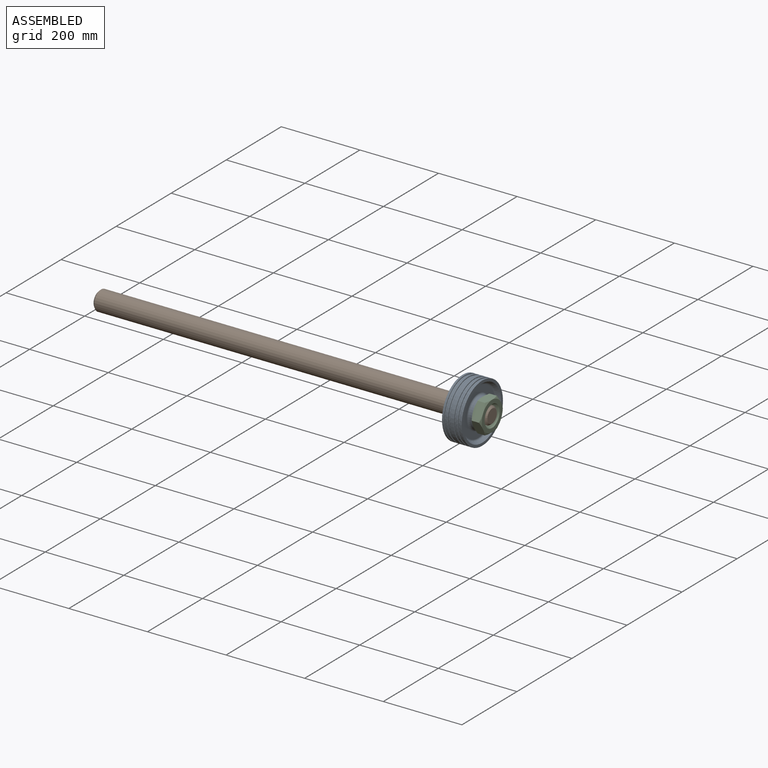
[diagram: assembled view]
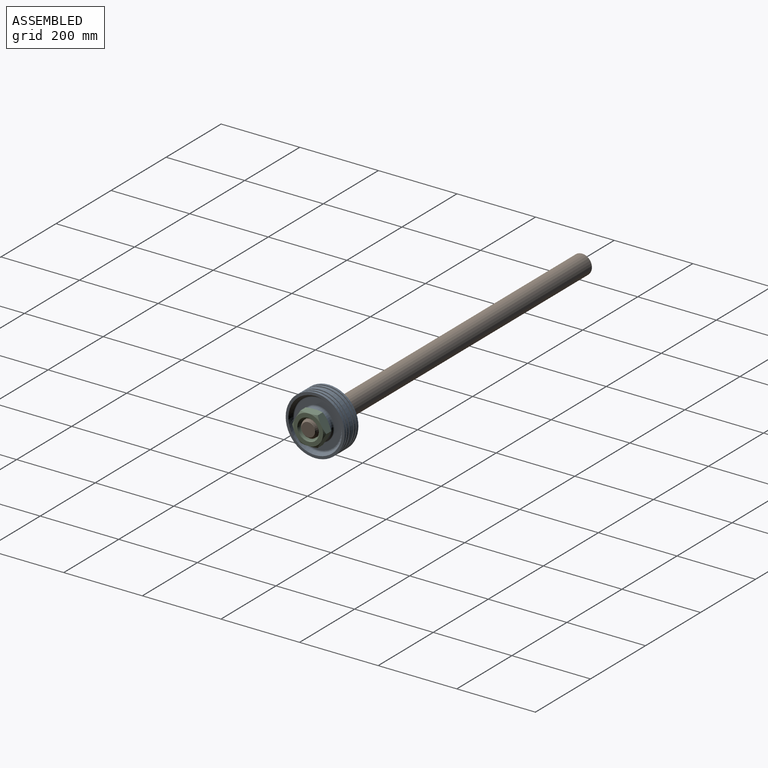
[diagram: assembled view, second angle]
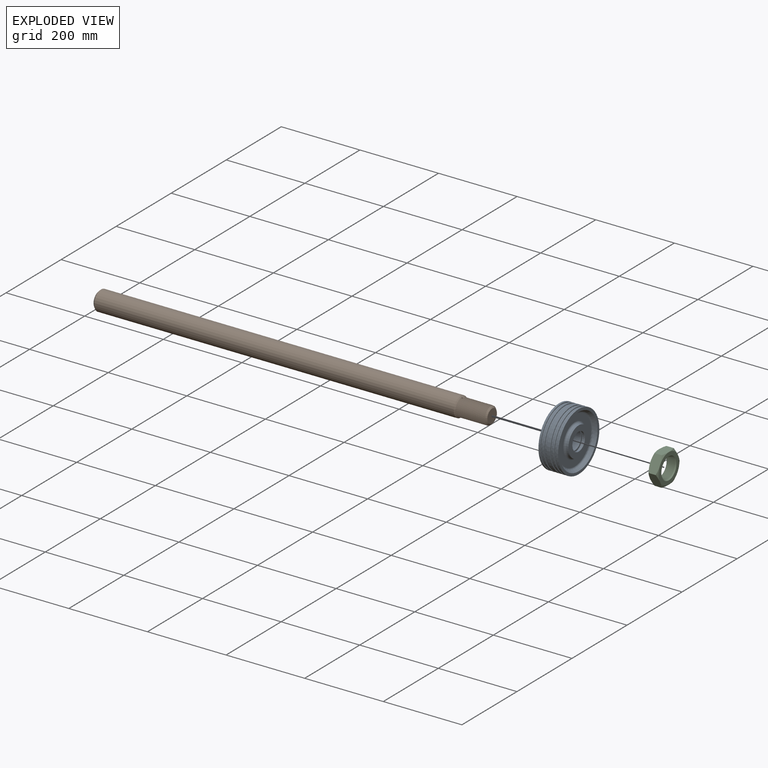
[diagram: exploded view]
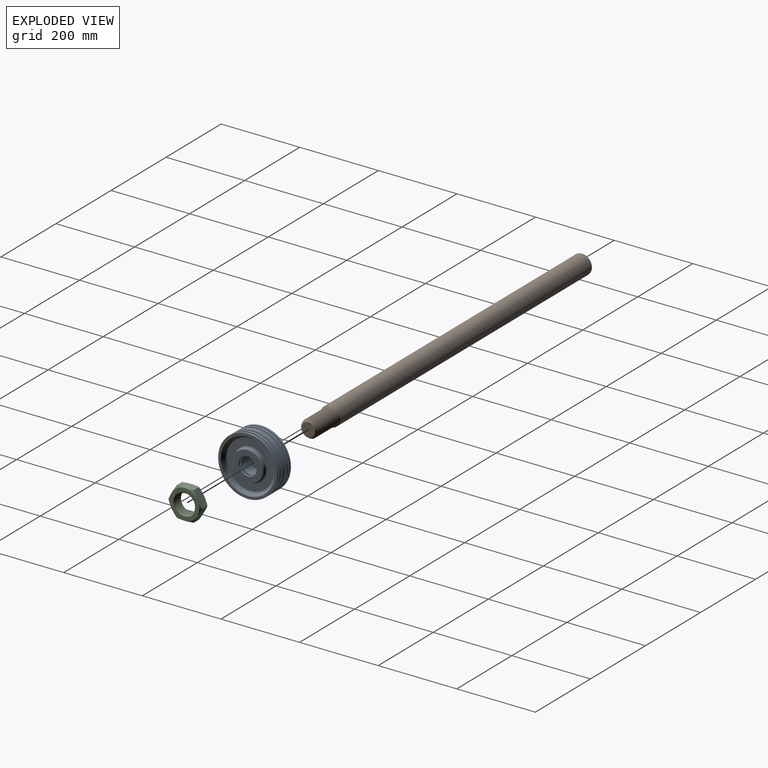
[diagram: exploded view, second angle]
ASSEMBLY  parts=3 mates=2
PART A: 54 faces, bbox 50x150x150 mm
  f0: plane 55x55mm, normal (1,0,0), area 713.9mm2, adj f1,f51
  f1: cylinder r=27.5mm len=55mm, axis (1,0,0), area 863.9mm2, adj f0,f2
  f2: plane 55x55mm, normal (-1,0,0), area 713.9mm2, adj f1,f52
  f3: cylinder r=22.5mm len=45mm, axis (1,0,0), area 565.5mm2, adj f48,f52
  f4: plane 75x75mm, normal (1,0,0), area 2756mm2, adj f5,f48
  f5: cylinder r=37.5mm len=75mm, axis (1,0,0), area 1162.6mm2, adj f4,f6
  f6: torus R=42.5mm, axis (1,0,0), area 1940.2mm2, adj f5,f7
  f7: plane 119.08x119.08mm, normal (1,0,0), area 5461.6mm2, adj f6,f8
  f8: torus R=59.54mm, axis (1,0,0), area 2037.3mm2, adj f7,f9
  f9: cone r=68.16mm half-angle=30deg, axis (1,0,0), area 3560.6mm2, adj f8,f10
  f10: plane 150x150mm, normal (1,0,0), area 3076.3mm2, adj f9,f11
  f11: cylinder r=75mm len=150mm, axis (1,0,0), area 2058.7mm2, adj f10,f40
  f12: plane 149x149mm, normal (-1,0,0), area 923.6mm2, adj f13,f40
  f13: cylinder r=72.5mm len=145mm, axis (1,0,0), area 2277.7mm2, adj f12,f14
  f14: plane 149x149mm, normal (1,0,0), area 923.6mm2, adj f13,f47
  f15: cylinder r=75mm len=150mm, axis (1,0,0), area 1885mm2, adj f41,f47
  f16: plane 149x149mm, normal (-1,0,0), area 923.6mm2, adj f17,f41
  f17: cylinder r=72.5mm len=145mm, axis (1,0,0), area 2277.7mm2, adj f16,f18
  f18: plane 149x149mm, normal (1,0,0), area 923.6mm2, adj f17,f46
  f19: cylinder r=75mm len=150mm, axis (1,0,0), area 4364.9mm2, adj f42,f46
  f20: plane 149x149mm, normal (-1,0,0), area 923.6mm2, adj f21,f42
  f21: cylinder r=72.5mm len=145mm, axis (1,0,0), area 2277.7mm2, adj f20,f22
  f22: plane 149x149mm, normal (1,0,0), area 923.6mm2, adj f21,f45
  f23: cylinder r=75mm len=150mm, axis (1,0,0), area 1885mm2, adj f43,f45
  f24: plane 149x149mm, normal (-1,0,0), area 923.6mm2, adj f25,f43
  f25: cylinder r=72.5mm len=145mm, axis (1,0,0), area 2277.7mm2, adj f24,f26
  f26: plane 149x149mm, normal (1,0,0), area 923.6mm2, adj f25,f44
  f27: cylinder r=75mm len=150mm, axis (1,0,0), area 2058.7mm2, adj f28,f44
  f28: plane 150x150mm, normal (-1,0,0), area 3076.3mm2, adj f27,f29
  f29: cone r=68.16mm half-angle=30deg, axis (-1,0,0), area 3560.6mm2, adj f28,f30
  f30: torus R=59.54mm, axis (1,0,0), area 2037.3mm2, adj f29,f31
  f31: plane 119.08x119.08mm, normal (-1,0,0), area 5461.6mm2, adj f30,f32
  f32: torus R=42.5mm, axis (1,0,0), area 1940.2mm2, adj f31,f33
  f33: cylinder r=37.5mm len=75mm, axis (1,0,0), area 1162.6mm2, adj f32,f34
  f34: plane 75x75mm, normal (-1,0,0), area 2756mm2, adj f33,f49
  f35: cylinder r=22.5mm len=45mm, axis (1,0,0), area 565.5mm2, adj f49,f50
  f36: plane 55x55mm, normal (1,0,0), area 713.9mm2, adj f37,f50
  f37: cylinder r=27.5mm len=55mm, axis (1,0,0), area 863.9mm2, adj f36,f38
  f38: plane 55x55mm, normal (-1,0,0), area 713.9mm2, adj f37,f53
  f39: cylinder r=22.5mm len=45mm, axis (1,0,0), area 4099.8mm2, adj f51,f53
  f40: cone r=75mm half-angle=45deg, axis (1,0,0), area 332.1mm2, adj f11,f12
  f41: cone r=75mm half-angle=45deg, axis (1,0,0), area 332.1mm2, adj f15,f16
  f42: cone r=75mm half-angle=45deg, axis (1,0,0), area 332.1mm2, adj f19,f20
  f43: cone r=75mm half-angle=45deg, axis (1,0,0), area 332.1mm2, adj f23,f24
  f44: cone r=74.5mm half-angle=45deg, axis (-1,0,0), area 332.1mm2, adj f26,f27
  f45: cone r=74.5mm half-angle=45deg, axis (-1,0,0), area 332.1mm2, adj f22,f23
  f46: cone r=74.5mm half-angle=45deg, axis (-1,0,0), area 332.1mm2, adj f18,f19
  f47: cone r=74.5mm half-angle=45deg, axis (-1,0,0), area 332.1mm2, adj f14,f15
  f48: cone r=22.5mm half-angle=45deg, axis (1,0,0), area 101.1mm2, adj f3,f4
  f49: cone r=23mm half-angle=45deg, axis (-1,0,0), area 101.1mm2, adj f34,f35
  f50: cone r=22.5mm half-angle=45deg, axis (1,0,0), area 101.1mm2, adj f35,f36
  f51: cone r=22.5mm half-angle=45deg, axis (1,0,0), area 101.1mm2, adj f0,f39
  f52: cone r=23mm half-angle=45deg, axis (-1,0,0), area 101.1mm2, adj f2,f3
  f53: cone r=23mm half-angle=45deg, axis (-1,0,0), area 101.1mm2, adj f38,f39
PART B: 14 faces, bbox 1001.3x51.8x50 mm
  f0: cylinder r=25mm len=915mm, axis (1,0,0), area 143727.9mm2, adj f3,f4
  f1: plane 40x40mm, normal (-1,0,0), area 1256.6mm2, adj f3
  f2: cylinder r=22.45mm len=44.9mm, axis (1,0,0), area 197.1mm2, adj f4,f7,f10
  f3: cone r=25mm half-angle=45deg, axis (1,0,0), area 999.6mm2, adj f0,f1
  f4: cone r=20mm half-angle=45deg, axis (-1,0,0), area 537.6mm2, adj f0,f2,f5
  f5: cylinder r=22.45mm len=22.24mm, axis (-1,0,0), area 17.2mm2, adj f4,f7,f10
  f6: plane 0.82x0.6mm, normal (0,1,0), area 0.1mm2, adj f8,f9,f12
  f7: plane 4.84x4.33mm, normal (0,-1,0), area 10.8mm2, adj f2,f5,f8,f9,f10
  f8: bspline ~77.34x51.22mm, area 9151.5mm2, adj f6,f7,f9,f12,f13
  f9: bspline ~77.34x51.22mm, area 9466.4mm2, adj f6,f7,f8,f10,f13
  f10: bspline ~51.85x44.9mm, area 43.8mm2, adj f2,f5,f7,f9
  f11: plane 34.9x34.9mm, normal (1,0,0), area 956.6mm2, adj f12
  f12: cone r=17.45mm half-angle=45deg, axis (-1,0,0), area 396.6mm2, adj f6,f8,f11,f13
  f13: cone r=17.45mm half-angle=45deg, axis (-1,0,0), area 63.8mm2, adj f8,f9,f12
PART C: 26 faces, bbox 90.2x90.2x29.8 mm
  f0: cone r=27.5mm half-angle=45deg, axis (0,0,-1), area 542.8mm2, adj f1,f3,f23,f24
  f1: cone r=27.5mm half-angle=45deg, axis (0,0,-1), area 0.6mm2, adj f0,f24,f25
  f2: plane 75x75mm, normal (0,0,1), area 2042mm2, adj f4,f5,f8,f10,f12,f14,f22
  f3: plane 75x75mm, normal (0,0,-1), area 2042mm2, adj f0,f6,f7,f9,f11,f13,f15
  f4: cone r=53.19mm half-angle=60deg, axis (0,0,-1), area 138.3mm2, adj f2,f16,f21
  f5: cone r=53.19mm half-angle=60deg, axis (0,0,-1), area 138.3mm2, adj f2,f16,f17
  f6: cone r=53.19mm half-angle=60deg, axis (0,0,1), area 138.3mm2, adj f3,f16,f21
  f7: cone r=53.19mm half-angle=60deg, axis (0,0,1), area 138.3mm2, adj f3,f16,f17
  f8: cone r=53.19mm half-angle=60deg, axis (0,0,-1), area 138.3mm2, adj f2,f17,f18
  f9: cone r=53.19mm half-angle=60deg, axis (0,0,1), area 138.3mm2, adj f3,f17,f18
  f10: cone r=53.19mm half-angle=60deg, axis (0,0,-1), area 138.3mm2, adj f2,f18,f19
  f11: cone r=53.19mm half-angle=60deg, axis (0,0,1), area 138.3mm2, adj f3,f18,f19
  f12: cone r=53.19mm half-angle=60deg, axis (0,0,-1), area 138.3mm2, adj f2,f19,f20
  f13: cone r=53.19mm half-angle=60deg, axis (0,0,1), area 138.3mm2, adj f3,f19,f20
  f14: cone r=53.19mm half-angle=60deg, axis (0,0,-1), area 138.3mm2, adj f2,f20,f21
  f15: cone r=53.19mm half-angle=60deg, axis (0,0,1), area 138.3mm2, adj f3,f20,f21
  f16: plane 46.89x28.58mm, normal (-1,0,0), area 983mm2, adj f4,f5,f6,f7,f17,f21
  f17: plane 41.06x28.57mm, normal (-0.5,0.87,0), area 983mm2, adj f5,f7,f8,f9,f16,f18
  f18: plane 41.06x28.57mm, normal (0.5,0.87,0), area 983mm2, adj f8,f9,f10,f11,f17,f19
  f19: plane 46.89x28.58mm, normal (1,0,0), area 983mm2, adj f10,f11,f12,f13,f18,f20
  f20: plane 41.06x28.57mm, normal (0.5,-0.87,0), area 983mm2, adj f12,f13,f14,f15,f19,f21
  f21: plane 41.06x28.57mm, normal (-0.5,-0.87,0), area 983mm2, adj f4,f6,f14,f15,f16,f20
  f22: cone r=22.5mm half-angle=45deg, axis (0,0,1), area 473.1mm2, adj f2,f24,f25
  f23: plane 2.48x1.82mm, normal (1,0,0), area 1mm2, adj f0,f24,f25
  f24: bspline ~61.96x53.66mm, area 3338.5mm2, adj f0,f1,f22,f23,f25
  f25: bspline ~61.96x53.66mm, area 3284.5mm2, adj f1,f22,f23,f24
PLACE A t=(-160.56,-75.28,26.12)mm
PLACE B t=(-110.56,-75.28,26.12)mm fixed
PLACE C rot(axis=(0,1,0),90deg) t=(-135.56,-75.28,26.12)mm
MATE fastened C.f0 <-> B.f0  axis (1,0,0) through (-110.56,-75.28,26.12)mm
MATE fastened B.f0 <-> A.f1  axis (1,0,0) through (-110.56,-75.28,26.12)mm
